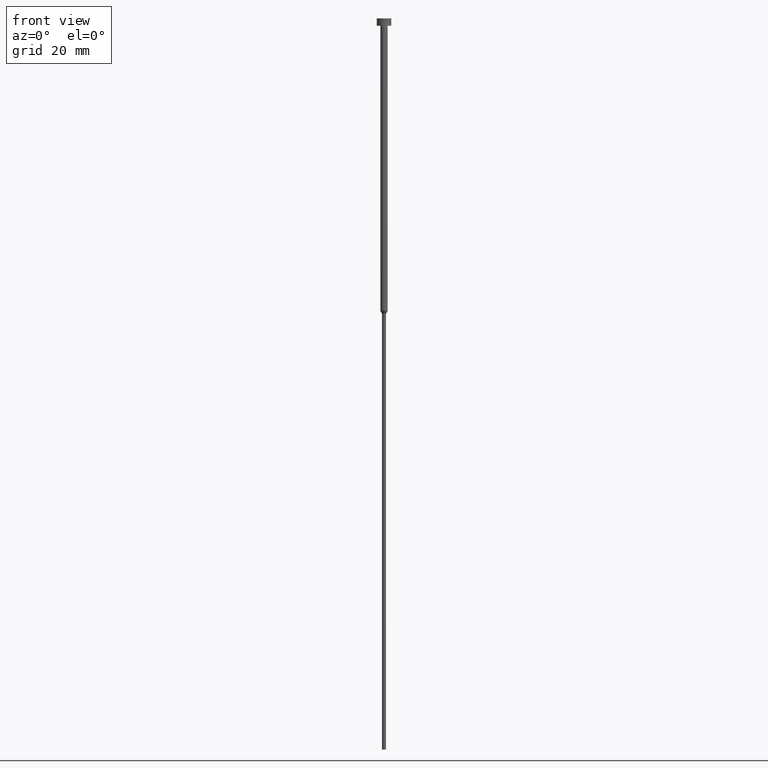
[diagram: clean part render]
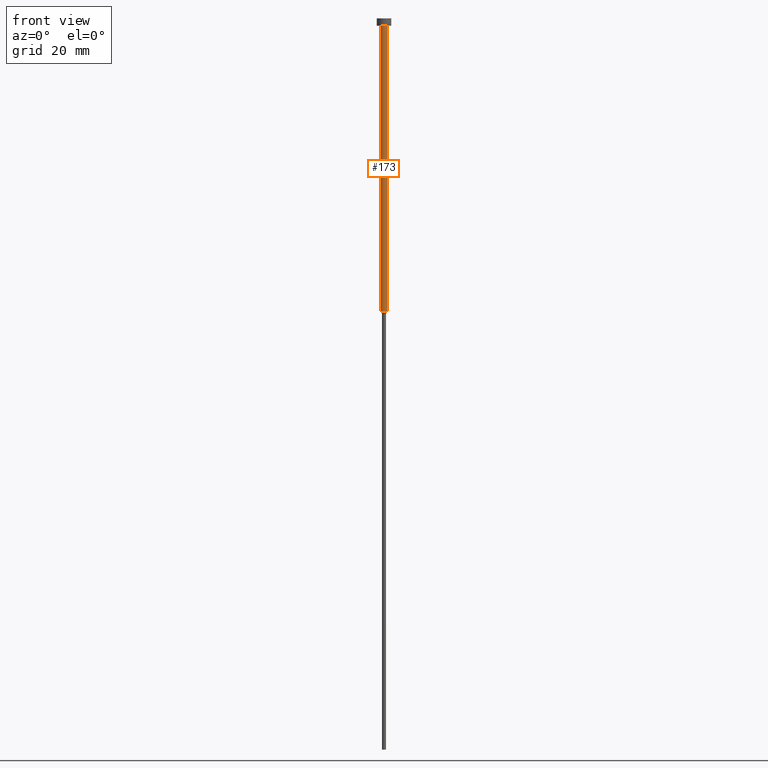
[diagram: same view with one face highlighted and labeled with its STEP entity id]
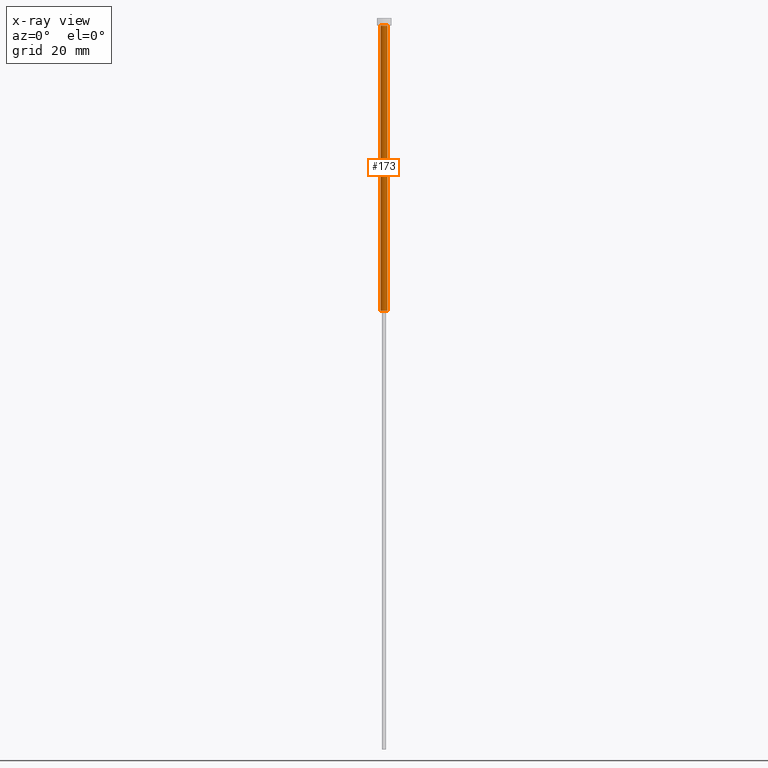
[diagram: x-ray of the same camera — body ghosted, the highlighted face saturated]
A machine part, front view. The second image highlights one B-rep face of the part: STEP entity #173.
The next image is the same camera in x-ray: the body ghosted, the highlighted face saturated — about 0% of this face is hidden behind the body in this view.
In plain terms, the highlighted cylindrical surface (edge-blend (fillet) strip) has radius 1 mm, axis along (-0, -0, 1).
Its self-contained STEP definition (entity closure, byte-faithful):
#8 = EDGE_LOOP ( 'NONE', ( #317, #113, #299, #243 ) ) ;
#25 = VERTEX_POINT ( 'NONE', #122 ) ;
#30 = CYLINDRICAL_SURFACE ( 'NONE', #228, 1.000000000000003331 ) ;
#36 = DIRECTION ( 'NONE',  ( 1.000000000000000000, 0.000000000000000000, 0.000000000000000000 ) ) ;
#39 = AXIS2_PLACEMENT_3D ( 'NONE', #234, #178, #36 ) ;
#46 = DIRECTION ( 'NONE',  ( -0.000000000000000000, -0.000000000000000000, 1.000000000000000000 ) ) ;
#51 = FACE_OUTER_BOUND ( 'NONE', #8, .T. ) ;
#64 = VERTEX_POINT ( 'NONE', #107 ) ;
#66 = DIRECTION ( 'NONE',  ( -0.000000000000000000, -0.000000000000000000, 1.000000000000000000 ) ) ;
#67 = CARTESIAN_POINT ( 'NONE',  ( 1.000000000000003109, 0.000000000000000000, -80.00000000000000000 ) ) ;
#75 = VERTEX_POINT ( 'NONE', #67 ) ;
#93 = DIRECTION ( 'NONE',  ( -0.000000000000000000, -0.000000000000000000, 1.000000000000000000 ) ) ;
#107 = CARTESIAN_POINT ( 'NONE',  ( 1.000000000000003553, 0.000000000000000000, -2.000000000000000444 ) ) ;
#113 = ORIENTED_EDGE ( 'NONE', *, *, #203, .T. ) ;
#122 = CARTESIAN_POINT ( 'NONE',  ( -1.000000000000003553, 1.224646799147357398E-16, -2.000000000000000444 ) ) ;
#124 = CARTESIAN_POINT ( 'NONE',  ( 0.000000000000000000, 0.000000000000000000, -2.000000000000000444 ) ) ;
#173 = ADVANCED_FACE ( 'NONE', ( #51 ), #30, .T. ) ;
#174 = CIRCLE ( 'NONE', #39, 1.000000000000003109 ) ;
#178 = DIRECTION ( 'NONE',  ( -0.000000000000000000, -0.000000000000000000, 1.000000000000000000 ) ) ;
#184 = DIRECTION ( 'NONE',  ( -0.000000000000000000, -0.000000000000000000, 1.000000000000000000 ) ) ;
#191 = VERTEX_POINT ( 'NONE', #301 ) ;
#203 = EDGE_CURVE ( 'NONE', #191, #75, #174, .T. ) ;
#209 = LINE ( 'NONE', #310, #262 ) ;
#228 = AXIS2_PLACEMENT_3D ( 'NONE', #271, #93, #256 ) ;
#234 = CARTESIAN_POINT ( 'NONE',  ( 0.000000000000000000, 0.000000000000000000, -80.00000000000000000 ) ) ;
#242 = EDGE_CURVE ( 'NONE', #75, #64, #285, .T. ) ;
#243 = ORIENTED_EDGE ( 'NONE', *, *, #257, .F. ) ;
#244 = AXIS2_PLACEMENT_3D ( 'NONE', #124, #184, #265 ) ;
#256 = DIRECTION ( 'NONE',  ( 1.000000000000000000, 0.000000000000000000, 0.000000000000000000 ) ) ;
#257 = EDGE_CURVE ( 'NONE', #25, #64, #287, .T. ) ;
#262 = VECTOR ( 'NONE', #66, 1000.000000000000000 ) ;
#264 = CARTESIAN_POINT ( 'NONE',  ( 1.000000000000003331, 0.000000000000000000, 0.000000000000000000 ) ) ;
#265 = DIRECTION ( 'NONE',  ( 1.000000000000000000, 0.000000000000000000, 0.000000000000000000 ) ) ;
#271 = CARTESIAN_POINT ( 'NONE',  ( 0.000000000000000000, 0.000000000000000000, 0.000000000000000000 ) ) ;
#285 = LINE ( 'NONE', #264, #323 ) ;
#287 = CIRCLE ( 'NONE', #244, 1.000000000000003553 ) ;
#297 = EDGE_CURVE ( 'NONE', #191, #25, #209, .T. ) ;
#299 = ORIENTED_EDGE ( 'NONE', *, *, #242, .T. ) ;
#301 = CARTESIAN_POINT ( 'NONE',  ( -1.000000000000003109, 1.224646799147356905E-16, -80.00000000000000000 ) ) ;
#310 = CARTESIAN_POINT ( 'NONE',  ( -1.000000000000003331, 1.224646799147357151E-16, 0.000000000000000000 ) ) ;
#317 = ORIENTED_EDGE ( 'NONE', *, *, #297, .F. ) ;
#323 = VECTOR ( 'NONE', #46, 1000.000000000000000 ) ;